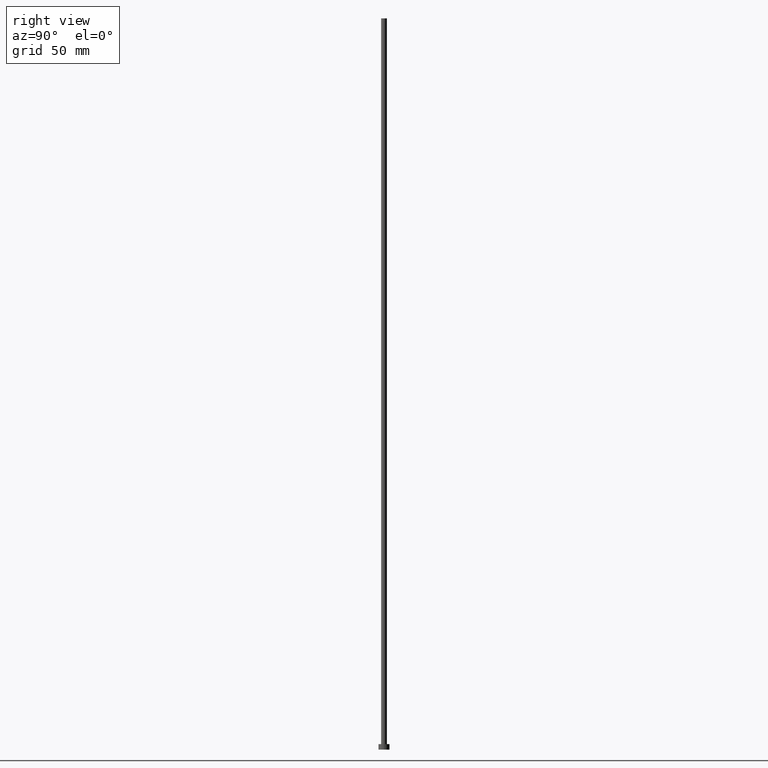
[diagram: clean part render]
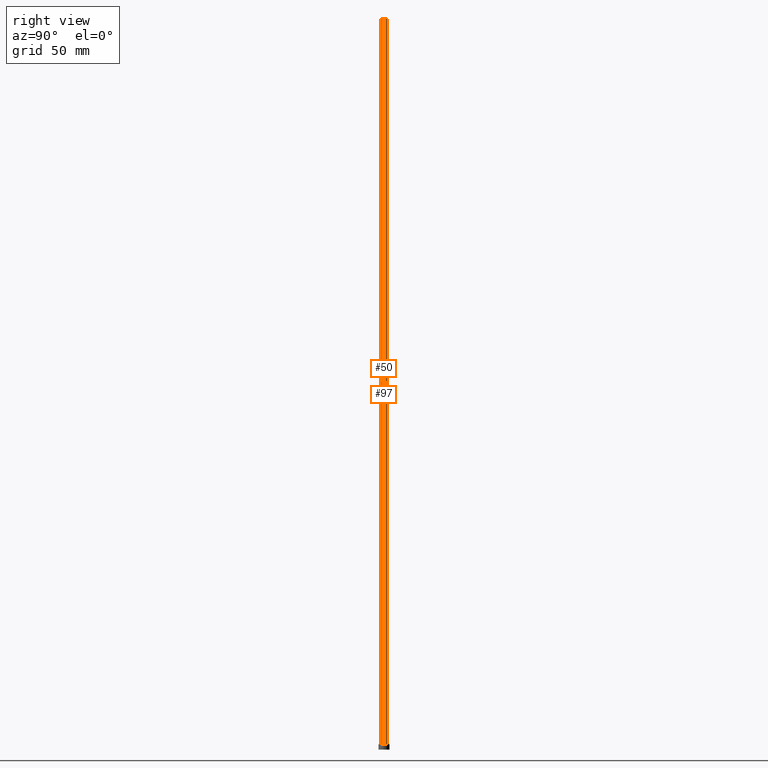
[diagram: same view with one multi-face feature highlighted, each face labeled with its STEP entity id]
A machine part, right view. The highlighted faces form ONE feature: a constant-radius fillet chain: 2 tangent blend faces with common blend radius 1.6 mm. The faces share edges in the B-rep.
Their STEP definitions:
[1] entity #50 (Cylinder):
#5 = DIRECTION ( 'NONE',  ( -1.000000000000000000, 0.000000000000000000, 0.000000000000000000 ) ) ;
#21 = CYLINDRICAL_SURFACE ( 'NONE', #38, 1.600000000000000089 ) ;
#30 = LINE ( 'NONE', #194, #123 ) ;
#33 = VECTOR ( 'NONE', #113, 1000.000000000000000 ) ;
#38 = AXIS2_PLACEMENT_3D ( 'NONE', #110, #192, #5 ) ;
#48 = DIRECTION ( 'NONE',  ( 0.000000000000000000, 0.000000000000000000, 1.000000000000000000 ) ) ;
#50 = ADVANCED_FACE ( 'NONE', ( #127 ), #21, .T. ) ;
#54 = CIRCLE ( 'NONE', #247, 1.600000000000000089 ) ;
#63 = ORIENTED_EDGE ( 'NONE', *, *, #126, .T. ) ;
#64 = AXIS2_PLACEMENT_3D ( 'NONE', #116, #177, #91 ) ;
#67 = CARTESIAN_POINT ( 'NONE',  ( -1.600000000000000089, 0.000000000000000000, 400.0000000000000000 ) ) ;
#80 = ORIENTED_EDGE ( 'NONE', *, *, #222, .F. ) ;
#91 = DIRECTION ( 'NONE',  ( 1.000000000000000000, 0.000000000000000000, 0.000000000000000000 ) ) ;
#96 = DIRECTION ( 'NONE',  ( -0.000000000000000000, -0.000000000000000000, -1.000000000000000000 ) ) ;
#110 = CARTESIAN_POINT ( 'NONE',  ( 0.000000000000000000, 0.000000000000000000, 400.0000000000000000 ) ) ;
#113 = DIRECTION ( 'NONE',  ( -0.000000000000000000, -0.000000000000000000, -1.000000000000000000 ) ) ;
#116 = CARTESIAN_POINT ( 'NONE',  ( 0.000000000000000000, 0.000000000000000000, 400.0000000000000000 ) ) ;
#123 = VECTOR ( 'NONE', #96, 1000.000000000000000 ) ;
#126 = EDGE_CURVE ( 'NONE', #209, #150, #54, .T. ) ;
#127 = FACE_OUTER_BOUND ( 'NONE', #169, .T. ) ;
#134 = LINE ( 'NONE', #230, #33 ) ;
#146 = ORIENTED_EDGE ( 'NONE', *, *, #155, .T. ) ;
#150 = VERTEX_POINT ( 'NONE', #176 ) ;
#155 = EDGE_CURVE ( 'NONE', #239, #209, #134, .T. ) ;
#169 = EDGE_LOOP ( 'NONE', ( #80, #228, #146, #63 ) ) ;
#173 = CARTESIAN_POINT ( 'NONE',  ( -1.600000000000000089, 0.000000000000000000, 3.000000000000000000 ) ) ;
#176 = CARTESIAN_POINT ( 'NONE',  ( 1.600000000000000089, 1.959434878635765230E-16, 3.000000000000000000 ) ) ;
#177 = DIRECTION ( 'NONE',  ( 0.000000000000000000, 0.000000000000000000, 1.000000000000000000 ) ) ;
#186 = CIRCLE ( 'NONE', #64, 1.600000000000000089 ) ;
#190 = EDGE_CURVE ( 'NONE', #239, #202, #186, .T. ) ;
#192 = DIRECTION ( 'NONE',  ( -0.000000000000000000, -0.000000000000000000, -1.000000000000000000 ) ) ;
#194 = CARTESIAN_POINT ( 'NONE',  ( 1.600000000000000089, 1.959434878635765230E-16, 400.0000000000000000 ) ) ;
#202 = VERTEX_POINT ( 'NONE', #244 ) ;
#209 = VERTEX_POINT ( 'NONE', #173 ) ;
#213 = DIRECTION ( 'NONE',  ( 1.000000000000000000, 0.000000000000000000, 0.000000000000000000 ) ) ;
#216 = CARTESIAN_POINT ( 'NONE',  ( 0.000000000000000000, 0.000000000000000000, 3.000000000000000000 ) ) ;
#222 = EDGE_CURVE ( 'NONE', #202, #150, #30, .T. ) ;
#228 = ORIENTED_EDGE ( 'NONE', *, *, #190, .F. ) ;
#230 = CARTESIAN_POINT ( 'NONE',  ( -1.600000000000000089, 0.000000000000000000, 400.0000000000000000 ) ) ;
#239 = VERTEX_POINT ( 'NONE', #67 ) ;
#244 = CARTESIAN_POINT ( 'NONE',  ( 1.600000000000000089, 1.959434878635765230E-16, 400.0000000000000000 ) ) ;
#247 = AXIS2_PLACEMENT_3D ( 'NONE', #216, #48, #213 ) ;
[2] entity #97 (Cylinder):
#2 = ORIENTED_EDGE ( 'NONE', *, *, #76, .T. ) ;
#9 = DIRECTION ( 'NONE',  ( -0.000000000000000000, -0.000000000000000000, -1.000000000000000000 ) ) ;
#15 = ORIENTED_EDGE ( 'NONE', *, *, #40, .F. ) ;
#17 = DIRECTION ( 'NONE',  ( 1.000000000000000000, 0.000000000000000000, 0.000000000000000000 ) ) ;
#24 = AXIS2_PLACEMENT_3D ( 'NONE', #151, #133, #211 ) ;
#30 = LINE ( 'NONE', #194, #123 ) ;
#33 = VECTOR ( 'NONE', #113, 1000.000000000000000 ) ;
#40 = EDGE_CURVE ( 'NONE', #202, #239, #88, .T. ) ;
#41 = DIRECTION ( 'NONE',  ( 0.000000000000000000, 0.000000000000000000, 1.000000000000000000 ) ) ;
#45 = AXIS2_PLACEMENT_3D ( 'NONE', #253, #41, #17 ) ;
#46 = EDGE_LOOP ( 'NONE', ( #15, #255, #2, #167 ) ) ;
#53 = CARTESIAN_POINT ( 'NONE',  ( 0.000000000000000000, 0.000000000000000000, 400.0000000000000000 ) ) ;
#67 = CARTESIAN_POINT ( 'NONE',  ( -1.600000000000000089, 0.000000000000000000, 400.0000000000000000 ) ) ;
#76 = EDGE_CURVE ( 'NONE', #150, #209, #103, .T. ) ;
#88 = CIRCLE ( 'NONE', #24, 1.600000000000000089 ) ;
#96 = DIRECTION ( 'NONE',  ( -0.000000000000000000, -0.000000000000000000, -1.000000000000000000 ) ) ;
#97 = ADVANCED_FACE ( 'NONE', ( #114 ), #243, .T. ) ;
#103 = CIRCLE ( 'NONE', #45, 1.600000000000000089 ) ;
#113 = DIRECTION ( 'NONE',  ( -0.000000000000000000, -0.000000000000000000, -1.000000000000000000 ) ) ;
#114 = FACE_OUTER_BOUND ( 'NONE', #46, .T. ) ;
#123 = VECTOR ( 'NONE', #96, 1000.000000000000000 ) ;
#133 = DIRECTION ( 'NONE',  ( 0.000000000000000000, 0.000000000000000000, 1.000000000000000000 ) ) ;
#134 = LINE ( 'NONE', #230, #33 ) ;
#138 = AXIS2_PLACEMENT_3D ( 'NONE', #53, #9, #199 ) ;
#150 = VERTEX_POINT ( 'NONE', #176 ) ;
#151 = CARTESIAN_POINT ( 'NONE',  ( 0.000000000000000000, 0.000000000000000000, 400.0000000000000000 ) ) ;
#155 = EDGE_CURVE ( 'NONE', #239, #209, #134, .T. ) ;
#167 = ORIENTED_EDGE ( 'NONE', *, *, #155, .F. ) ;
#173 = CARTESIAN_POINT ( 'NONE',  ( -1.600000000000000089, 0.000000000000000000, 3.000000000000000000 ) ) ;
#176 = CARTESIAN_POINT ( 'NONE',  ( 1.600000000000000089, 1.959434878635765230E-16, 3.000000000000000000 ) ) ;
#194 = CARTESIAN_POINT ( 'NONE',  ( 1.600000000000000089, 1.959434878635765230E-16, 400.0000000000000000 ) ) ;
#199 = DIRECTION ( 'NONE',  ( -1.000000000000000000, 0.000000000000000000, 0.000000000000000000 ) ) ;
#202 = VERTEX_POINT ( 'NONE', #244 ) ;
#209 = VERTEX_POINT ( 'NONE', #173 ) ;
#211 = DIRECTION ( 'NONE',  ( 1.000000000000000000, 0.000000000000000000, 0.000000000000000000 ) ) ;
#222 = EDGE_CURVE ( 'NONE', #202, #150, #30, .T. ) ;
#230 = CARTESIAN_POINT ( 'NONE',  ( -1.600000000000000089, 0.000000000000000000, 400.0000000000000000 ) ) ;
#239 = VERTEX_POINT ( 'NONE', #67 ) ;
#243 = CYLINDRICAL_SURFACE ( 'NONE', #138, 1.600000000000000089 ) ;
#244 = CARTESIAN_POINT ( 'NONE',  ( 1.600000000000000089, 1.959434878635765230E-16, 400.0000000000000000 ) ) ;
#253 = CARTESIAN_POINT ( 'NONE',  ( 0.000000000000000000, 0.000000000000000000, 3.000000000000000000 ) ) ;
#255 = ORIENTED_EDGE ( 'NONE', *, *, #222, .T. ) ;